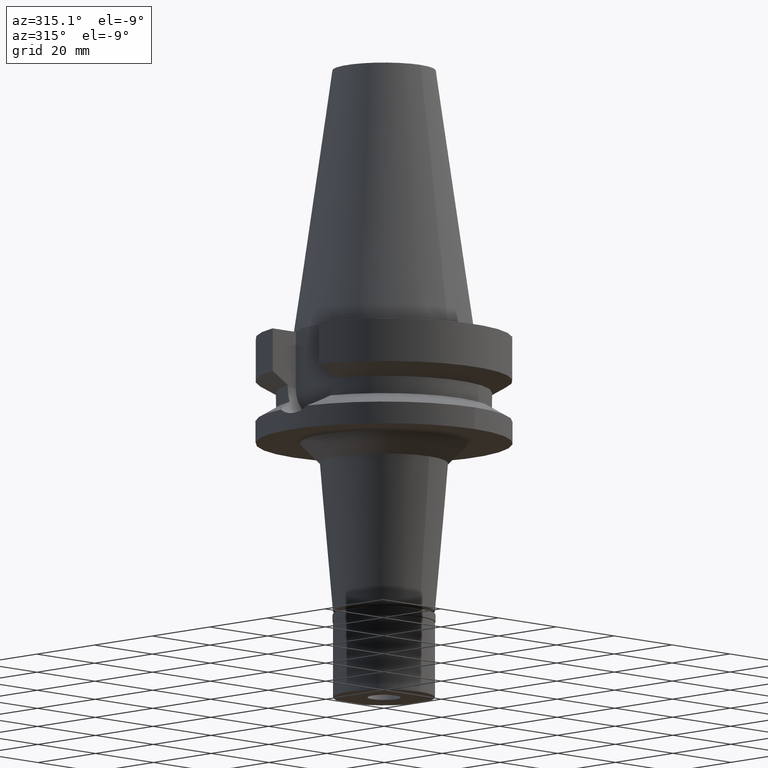
[diagram: clean part render]
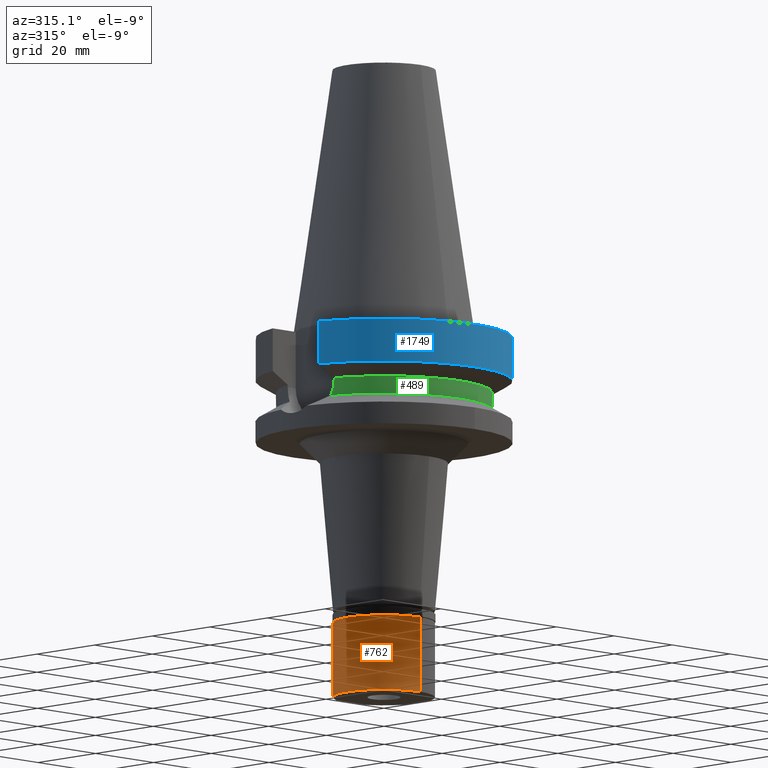
[diagram: same view with three faces highlighted in distinct colors, each labeled with its STEP entity id]
A machine part, auxiliary view with three faces highlighted in distinct colors.
Their STEP definitions:

[orange] entity #762 — the highlighted cylindrical surface (partial cylindrical patch) has radius 12.5 mm, axis along (0, 0, -1).
#176 = CARTESIAN_POINT ( 'NONE',  ( 0.0000000000000000000, -12.50000000000000000, -2.000000000000000000 ) ) ;
#215 = EDGE_CURVE ( 'NONE', #1592, #2188, #2111, .T. ) ;
#248 = DIRECTION ( 'NONE',  ( 0.0000000000000000000, 0.0000000000000000000, 1.000000000000000000 ) ) ;
#264 = CARTESIAN_POINT ( 'NONE',  ( 0.0000000000000000000, -12.50000000000000000, -2.000000000000000000 ) ) ;
#336 = AXIS2_PLACEMENT_3D ( 'NONE', #2628, #248, #479 ) ;
#479 = DIRECTION ( 'NONE',  ( 0.0000000000000000000, 1.000000000000000000, 0.0000000000000000000 ) ) ;
#495 = DIRECTION ( 'NONE',  ( 0.0000000000000000000, 0.0000000000000000000, -1.000000000000000000 ) ) ;
#507 = LINE ( 'NONE', #264, #2178 ) ;
#762 = ADVANCED_FACE ( 'NONE', ( #1898 ), #1692, .T. ) ;
#784 = AXIS2_PLACEMENT_3D ( 'NONE', #1664, #2647, #2144 ) ;
#849 = VECTOR ( 'NONE', #2906, 1000.000000000000000 ) ;
#853 = EDGE_CURVE ( 'NONE', #2204, #1983, #2636, .T. ) ;
#1070 = CARTESIAN_POINT ( 'NONE',  ( 0.0000000000000000000, -12.50000000000000000, -20.50000000000000000 ) ) ;
#1356 = CARTESIAN_POINT ( 'NONE',  ( 0.0000000000000000000, 12.50000000000000000, -2.000000000000000000 ) ) ;
#1397 = DIRECTION ( 'NONE',  ( 0.0000000000000000000, -1.000000000000000000, 0.0000000000000000000 ) ) ;
#1460 = ORIENTED_EDGE ( 'NONE', *, *, #853, .T. ) ;
#1592 = VERTEX_POINT ( 'NONE', #176 ) ;
#1629 = CARTESIAN_POINT ( 'NONE',  ( 0.0000000000000000000, 0.0000000000000000000, -2.000000000000000000 ) ) ;
#1643 = ORIENTED_EDGE ( 'NONE', *, *, #1943, .F. ) ;
#1664 = CARTESIAN_POINT ( 'NONE',  ( 0.0000000000000000000, 0.0000000000000000000, 0.0000000000000000000 ) ) ;
#1692 = CYLINDRICAL_SURFACE ( 'NONE', #784, 12.50000000000000000 ) ;
#1817 = ORIENTED_EDGE ( 'NONE', *, *, #215, .T. ) ;
#1856 = CARTESIAN_POINT ( 'NONE',  ( 0.0000000000000000000, 12.50000000000000000, -20.50000000000000000 ) ) ;
#1898 = FACE_OUTER_BOUND ( 'NONE', #2612, .T. ) ;
#1943 = EDGE_CURVE ( 'NONE', #1592, #1983, #507, .T. ) ;
#1983 = VERTEX_POINT ( 'NONE', #1070 ) ;
#2031 = ORIENTED_EDGE ( 'NONE', *, *, #2460, .T. ) ;
#2111 = CIRCLE ( 'NONE', #2631, 12.50000000000000000 ) ;
#2144 = DIRECTION ( 'NONE',  ( 0.0000000000000000000, -1.000000000000000000, 0.0000000000000000000 ) ) ;
#2149 = LINE ( 'NONE', #3112, #849 ) ;
#2178 = VECTOR ( 'NONE', #495, 1000.000000000000000 ) ;
#2188 = VERTEX_POINT ( 'NONE', #1356 ) ;
#2204 = VERTEX_POINT ( 'NONE', #1856 ) ;
#2460 = EDGE_CURVE ( 'NONE', #2188, #2204, #2149, .T. ) ;
#2612 = EDGE_LOOP ( 'NONE', ( #1460, #1643, #1817, #2031 ) ) ;
#2628 = CARTESIAN_POINT ( 'NONE',  ( 0.0000000000000000000, 0.0000000000000000000, -20.50000000000000000 ) ) ;
#2631 = AXIS2_PLACEMENT_3D ( 'NONE', #1629, #2864, #1397 ) ;
#2636 = CIRCLE ( 'NONE', #336, 12.50000000000000000 ) ;
#2647 = DIRECTION ( 'NONE',  ( 0.0000000000000000000, 0.0000000000000000000, -1.000000000000000000 ) ) ;
#2864 = DIRECTION ( 'NONE',  ( 0.0000000000000000000, 0.0000000000000000000, -1.000000000000000000 ) ) ;
#2906 = DIRECTION ( 'NONE',  ( 0.0000000000000000000, 0.0000000000000000000, -1.000000000000000000 ) ) ;
#3112 = CARTESIAN_POINT ( 'NONE',  ( 0.0000000000000000000, 12.50000000000000000, -2.000000000000000000 ) ) ;

[blue] entity #1749 — the highlighted cylindrical surface (partial cylindrical patch) has radius 31.5 mm, axis along (0, 0, -1).
#3 = VERTEX_POINT ( 'NONE', #2218 ) ;
#164 = CARTESIAN_POINT ( 'NONE',  ( -30.45402272279000044, -8.050000000000000711, -1.000000000000000000 ) ) ;
#243 = VERTEX_POINT ( 'NONE', #3045 ) ;
#319 = VECTOR ( 'NONE', #2995, 1000.000000000000000 ) ;
#356 = DIRECTION ( 'NONE',  ( 0.0000000000000000000, -1.000000000000000000, 0.0000000000000000000 ) ) ;
#439 = VECTOR ( 'NONE', #2240, 1000.000000000000114 ) ;
#442 = CIRCLE ( 'NONE', #1115, 31.50000000000000000 ) ;
#572 = CIRCLE ( 'NONE', #2472, 31.50000000000000000 ) ;
#609 = CARTESIAN_POINT ( 'NONE',  ( 0.0000000000000000000, 1.065333950388000029E-14, -11.56550565266999975 ) ) ;
#610 = CARTESIAN_POINT ( 'NONE',  ( 30.45402272279000044, -8.049999999999000622, -11.56550565266999975 ) ) ;
#614 = VERTEX_POINT ( 'NONE', #164 ) ;
#695 = DIRECTION ( 'NONE',  ( 0.0000000000000000000, -1.000000000000000000, 0.0000000000000000000 ) ) ;
#731 = EDGE_LOOP ( 'NONE', ( #3073, #1374, #2610, #2823 ) ) ;
#754 = LINE ( 'NONE', #2018, #319 ) ;
#854 = DIRECTION ( 'NONE',  ( 0.0000000000000000000, -1.000000000000000000, 0.0000000000000000000 ) ) ;
#1115 = AXIS2_PLACEMENT_3D ( 'NONE', #2650, #1923, #695 ) ;
#1140 = CYLINDRICAL_SURFACE ( 'NONE', #3047, 31.50000000000000000 ) ;
#1374 = ORIENTED_EDGE ( 'NONE', *, *, #2836, .T. ) ;
#1442 = CARTESIAN_POINT ( 'NONE',  ( -30.45402291387999938, -8.049999277087000138, -11.56551216378999847 ) ) ;
#1656 = EDGE_CURVE ( 'NONE', #3, #614, #2912, .T. ) ;
#1749 = ADVANCED_FACE ( 'NONE', ( #1875 ), #1140, .T. ) ;
#1765 = VERTEX_POINT ( 'NONE', #610 ) ;
#1838 = DIRECTION ( 'NONE',  ( 0.0000000000000000000, 0.0000000000000000000, -1.000000000000000000 ) ) ;
#1875 = FACE_OUTER_BOUND ( 'NONE', #731, .T. ) ;
#1923 = DIRECTION ( 'NONE',  ( 0.0000000000000000000, 0.0000000000000000000, -1.000000000000000000 ) ) ;
#2018 = CARTESIAN_POINT ( 'NONE',  ( 30.45402272279000044, -8.050000000000000711, -1.000000000000000000 ) ) ;
#2218 = CARTESIAN_POINT ( 'NONE',  ( -30.45402291387999938, -8.049999277087000138, -11.56551216378999847 ) ) ;
#2240 = DIRECTION ( 'NONE',  ( 1.808609281623990504E-08, -6.842188464656963498E-08, 0.9999999999999974465 ) ) ;
#2244 = EDGE_CURVE ( 'NONE', #243, #614, #442, .T. ) ;
#2472 = AXIS2_PLACEMENT_3D ( 'NONE', #609, #2553, #356 ) ;
#2553 = DIRECTION ( 'NONE',  ( 0.0000000000000000000, 0.0000000000000000000, 1.000000000000000000 ) ) ;
#2610 = ORIENTED_EDGE ( 'NONE', *, *, #3107, .F. ) ;
#2650 = CARTESIAN_POINT ( 'NONE',  ( 0.0000000000000000000, 2.116924457005999917E-14, -1.000000000000000000 ) ) ;
#2823 = ORIENTED_EDGE ( 'NONE', *, *, #2244, .T. ) ;
#2836 = EDGE_CURVE ( 'NONE', #3, #1765, #572, .T. ) ;
#2912 = LINE ( 'NONE', #1442, #439 ) ;
#2995 = DIRECTION ( 'NONE',  ( -1.037518711501017657E-07, -3.925040408980068522E-07, -0.9999999999999176215 ) ) ;
#3045 = CARTESIAN_POINT ( 'NONE',  ( 30.45402272279000044, -8.050000000000000711, -1.000000000000000000 ) ) ;
#3047 = AXIS2_PLACEMENT_3D ( 'NONE', #3068, #1838, #854 ) ;
#3068 = CARTESIAN_POINT ( 'NONE',  ( 0.0000000000000000000, 2.116924457005999917E-14, 72.85999999999999943 ) ) ;
#3073 = ORIENTED_EDGE ( 'NONE', *, *, #1656, .F. ) ;
#3107 = EDGE_CURVE ( 'NONE', #243, #1765, #754, .T. ) ;

[green] entity #489 — the highlighted cylindrical surface (partial cylindrical patch) has radius 26.5 mm, axis along (0, 0, -1).
#2 = ORIENTED_EDGE ( 'NONE', *, *, #3026, .F. ) ;
#11 = DIRECTION ( 'NONE',  ( 0.0000000000000000000, 0.0000000000000000000, -1.000000000000000000 ) ) ;
#146 = VERTEX_POINT ( 'NONE', #2052 ) ;
#203 = DIRECTION ( 'NONE',  ( 0.9527442516822307583, -0.3037735849057093818, 0.0000000000000000000 ) ) ;
#260 = VERTEX_POINT ( 'NONE', #1847 ) ;
#358 = CARTESIAN_POINT ( 'NONE',  ( 25.24772266958000344, -8.050000000000000711, -15.26991324108737302 ) ) ;
#392 = VECTOR ( 'NONE', #2669, 1000.000000000000000 ) ;
#422 = B_SPLINE_CURVE_WITH_KNOTS ( 'NONE', 3,
 ( #2555, #358, #1335, #2802, #458, #1485, #715, #933, #1731, #1499, #3145, #2894, #2463, #2199 ),
 .UNSPECIFIED., .F., .F.,
 ( 4, 2, 2, 1, 1, 2, 2, 4 ),
 ( 0.0000000000000000000, 0.2500000000000145439, 0.3750000000000218159, 0.4375000000000255351, 0.4687500000000285882, 0.4843750000000303091, 0.5000000000000319744, 1.000000000000000000 ),
 .UNSPECIFIED. ) ;
#458 = CARTESIAN_POINT ( 'NONE',  ( 25.28048358772242210, -7.947040743794914874, -16.24400980664077920 ) ) ;
#489 = ADVANCED_FACE ( 'NONE', ( #1270 ), #2515, .T. ) ;
#501 = ORIENTED_EDGE ( 'NONE', *, *, #1059, .F. ) ;
#503 = DIRECTION ( 'NONE',  ( 0.0000000000000000000, -1.000000000000000000, 0.0000000000000000000 ) ) ;
#676 = CARTESIAN_POINT ( 'NONE',  ( -25.39164951572489670, -7.584807667336940895, -17.65197957159466569 ) ) ;
#715 = CARTESIAN_POINT ( 'NONE',  ( 25.30212919435223995, -7.877667573970332349, -16.61042047323947202 ) ) ;
#721 = ORIENTED_EDGE ( 'NONE', *, *, #1882, .F. ) ;
#722 = CARTESIAN_POINT ( 'NONE',  ( 25.53175183775000079, -7.097862220092999941, -18.74774300138999905 ) ) ;
#874 = EDGE_CURVE ( 'NONE', #2898, #909, #3043, .T. ) ;
#893 = AXIS2_PLACEMENT_3D ( 'NONE', #2699, #1026, #503 ) ;
#909 = VERTEX_POINT ( 'NONE', #722 ) ;
#933 = CARTESIAN_POINT ( 'NONE',  ( 25.31202572170774800, -7.845729406580115750, -16.75279821057748464 ) ) ;
#1026 = DIRECTION ( 'NONE',  ( 0.0000000000000000000, 0.0000000000000000000, -1.000000000000000000 ) ) ;
#1040 = CARTESIAN_POINT ( 'NONE',  ( -25.24772266958000344, -8.050000000000000711, -14.94999999999999929 ) ) ;
#1059 = EDGE_CURVE ( 'NONE', #2400, #909, #422, .T. ) ;
#1109 = AXIS2_PLACEMENT_3D ( 'NONE', #1418, #2160, #2439 ) ;
#1188 = B_SPLINE_CURVE_WITH_KNOTS ( 'NONE', 3,
 ( #1465, #2931, #1711, #676, #1645, #2630, #1419, #2391, #2455, #1969, #1295, #1508, #1480, #1040 ),
 .UNSPECIFIED., .F., .F.,
 ( 4, 2, 2, 1, 1, 2, 2, 4 ),
 ( 0.0000000000000000000, 0.2499999999999918954, 0.3749999999999866218, 0.4374999999999840128, 0.4687499999999841238, 0.4843749999999829581, 0.4999999999999817923, 1.000000000000000000 ),
 .UNSPECIFIED. ) ;
#1195 = LINE ( 'NONE', #1950, #1395 ) ;
#1204 = ORIENTED_EDGE ( 'NONE', *, *, #2889, .F. ) ;
#1270 = FACE_OUTER_BOUND ( 'NONE', #2268, .T. ) ;
#1295 = CARTESIAN_POINT ( 'NONE',  ( -25.32419709970849908, -7.806318959900162113, -16.91578803901743555 ) ) ;
#1335 = CARTESIAN_POINT ( 'NONE',  ( 25.25396284446427231, -8.030907492774099765, -15.59360398733923248 ) ) ;
#1395 = VECTOR ( 'NONE', #2648, 1000.000000000000227 ) ;
#1418 = CARTESIAN_POINT ( 'NONE',  ( 0.0000000000000000000, 0.0000000000000000000, -18.74774300138999905 ) ) ;
#1419 = CARTESIAN_POINT ( 'NONE',  ( -25.34388450889785815, -7.742333382928198837, -17.15666984720020238 ) ) ;
#1465 = CARTESIAN_POINT ( 'NONE',  ( -25.53175183775000079, -7.097862220092999941, -18.74774300138999905 ) ) ;
#1480 = CARTESIAN_POINT ( 'NONE',  ( -25.24772266958000344, -8.049999999999982947, -15.58999736273348802 ) ) ;
#1484 = CARTESIAN_POINT ( 'NONE',  ( -25.24772266958000344, -8.050000000000000711, -14.94999999999999929 ) ) ;
#1485 = CARTESIAN_POINT ( 'NONE',  ( 25.29452398121201284, -7.902090651792915033, -16.48828405102948125 ) ) ;
#1499 = CARTESIAN_POINT ( 'NONE',  ( 25.31950905643225269, -7.821515286679913359, -16.85442525727320273 ) ) ;
#1508 = CARTESIAN_POINT ( 'NONE',  ( -25.27269391207093463, -7.973288729732009195, -16.24537813257525443 ) ) ;
#1645 = CARTESIAN_POINT ( 'NONE',  ( -25.37573308857945165, -7.637710303739479123, -17.49818662950806925 ) ) ;
#1711 = CARTESIAN_POINT ( 'NONE',  ( -25.44392837589919409, -7.408239565059833609, -18.11709494172741586 ) ) ;
#1731 = CARTESIAN_POINT ( 'NONE',  ( 25.31648647172267630, -7.831300037042746354, -16.81378020971410336 ) ) ;
#1847 = CARTESIAN_POINT ( 'NONE',  ( -25.24772413209000277, -8.049995413030000435, -14.45229204905000131 ) ) ;
#1882 = EDGE_CURVE ( 'NONE', #146, #260, #2707, .T. ) ;
#1950 = CARTESIAN_POINT ( 'NONE',  ( 25.24772216472999986, -8.050001583388000981, -14.45224490012999929 ) ) ;
#1969 = CARTESIAN_POINT ( 'NONE',  ( -25.32550670071061560, -7.802071535306287942, -16.93256103012994629 ) ) ;
#2013 = ORIENTED_EDGE ( 'NONE', *, *, #2466, .T. ) ;
#2052 = CARTESIAN_POINT ( 'NONE',  ( -25.24772266958000344, -8.050000000000000711, -14.94999999999999929 ) ) ;
#2145 = CARTESIAN_POINT ( 'NONE',  ( -25.53175183775000079, -7.097862220092999941, -18.74774300138999905 ) ) ;
#2160 = DIRECTION ( 'NONE',  ( 0.0000000000000000000, 0.0000000000000000000, 1.000000000000000000 ) ) ;
#2196 = CARTESIAN_POINT ( 'NONE',  ( 0.0000000000000000000, 1.065333950388000029E-14, -14.45225699861000024 ) ) ;
#2199 = CARTESIAN_POINT ( 'NONE',  ( 25.53175183775000079, -7.097862220092999941, -18.74774300138999905 ) ) ;
#2268 = EDGE_LOOP ( 'NONE', ( #2, #2437, #501, #1204, #2013, #721 ) ) ;
#2391 = CARTESIAN_POINT ( 'NONE',  ( -25.33293017119236268, -7.777974374871673646, -17.02562462713737190 ) ) ;
#2400 = VERTEX_POINT ( 'NONE', #2918 ) ;
#2437 = ORIENTED_EDGE ( 'NONE', *, *, #874, .T. ) ;
#2439 = DIRECTION ( 'NONE',  ( -0.9634623335000935818, -0.2678438573619981722, 0.0000000000000000000 ) ) ;
#2455 = CARTESIAN_POINT ( 'NONE',  ( -25.32844777903621036, -7.792527725354057466, -16.96974754110875239 ) ) ;
#2463 = CARTESIAN_POINT ( 'NONE',  ( 25.43786330456363487, -7.435589081430040714, -18.11654211998952135 ) ) ;
#2466 = EDGE_CURVE ( 'NONE', #2991, #260, #2597, .T. ) ;
#2515 = CYLINDRICAL_SURFACE ( 'NONE', #893, 26.50000000000000000 ) ;
#2555 = CARTESIAN_POINT ( 'NONE',  ( 25.24772266958000344, -8.050000000000000711, -14.94999999999999929 ) ) ;
#2597 = CIRCLE ( 'NONE', #2697, 26.50000000000000711 ) ;
#2630 = CARTESIAN_POINT ( 'NONE',  ( -25.35412323723022965, -7.708830947932249877, -17.27007949472958614 ) ) ;
#2648 = DIRECTION ( 'NONE',  ( 1.014250164037025960E-06, 3.181058609622085151E-06, -0.9999999999944260143 ) ) ;
#2663 = CARTESIAN_POINT ( 'NONE',  ( 25.24772266958000344, -8.050000000000000711, -14.45225699861000024 ) ) ;
#2669 = DIRECTION ( 'NONE',  ( -2.938493353012038704E-06, 9.216187823934117608E-06, 0.9999999999532135364 ) ) ;
#2697 = AXIS2_PLACEMENT_3D ( 'NONE', #2196, #11, #203 ) ;
#2699 = CARTESIAN_POINT ( 'NONE',  ( 0.0000000000000000000, 2.116924457005999917E-14, 72.85999999999999943 ) ) ;
#2707 = LINE ( 'NONE', #1484, #392 ) ;
#2802 = CARTESIAN_POINT ( 'NONE',  ( 25.27268336911707891, -7.971811480182248388, -16.08115959834941222 ) ) ;
#2889 = EDGE_CURVE ( 'NONE', #2991, #2400, #1195, .T. ) ;
#2894 = CARTESIAN_POINT ( 'NONE',  ( 25.36814761471070767, -7.663830712965410186, -17.48803584493431984 ) ) ;
#2898 = VERTEX_POINT ( 'NONE', #2145 ) ;
#2918 = CARTESIAN_POINT ( 'NONE',  ( 25.24772266958000344, -8.050000000000000711, -14.94999999999999929 ) ) ;
#2931 = CARTESIAN_POINT ( 'NONE',  ( -25.48482038766597313, -7.266679548433753411, -18.43222872448827943 ) ) ;
#2991 = VERTEX_POINT ( 'NONE', #2663 ) ;
#3026 = EDGE_CURVE ( 'NONE', #2898, #146, #1188, .T. ) ;
#3043 = CIRCLE ( 'NONE', #1109, 26.49999999999998224 ) ;
#3145 = CARTESIAN_POINT ( 'NONE',  ( 25.32118155423751560, -7.816096717212906775, -16.87652453452377443 ) ) ;